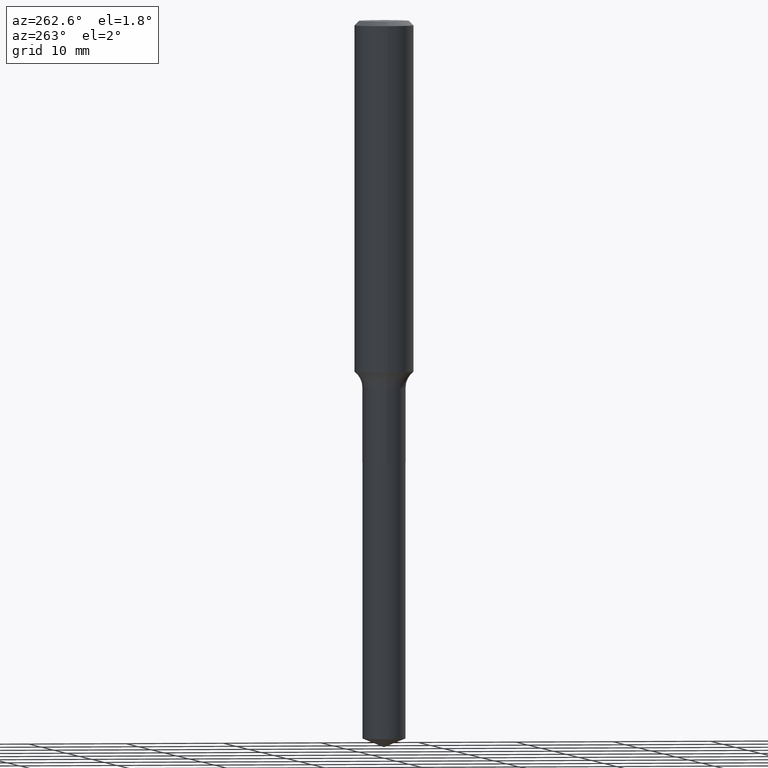
[diagram: clean part render]
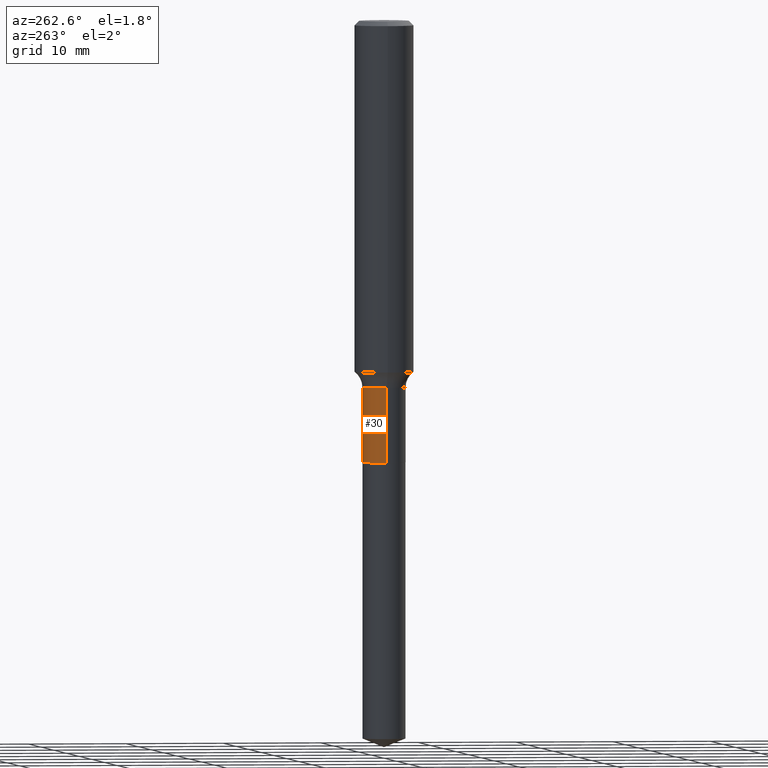
[diagram: same view with one face highlighted and labeled with its STEP entity id]
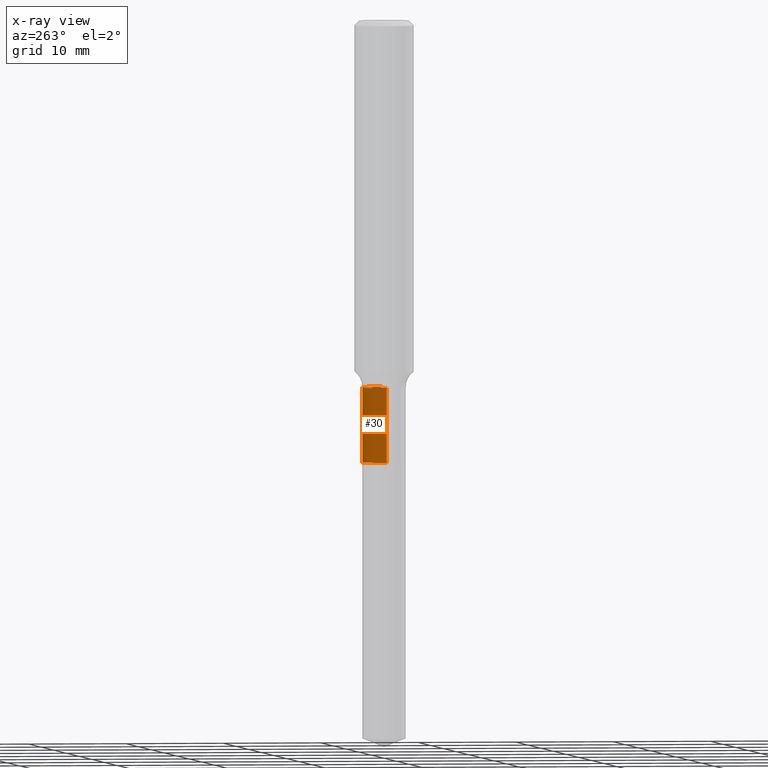
[diagram: x-ray of the same camera — body ghosted, the highlighted face saturated]
A machine part, auxiliary view. The second image highlights one B-rep face of the part: STEP entity #30.
The next image is the same camera in x-ray: the body ghosted, the highlighted face saturated — about 0% of this face is hidden behind the body in this view.
In plain terms, the highlighted cylindrical surface (edge-blend (fillet) strip) has radius 2.1996 mm, axis along (-0, 0, 1).
Its self-contained STEP definition (entity closure, byte-faithful):
#4 = CARTESIAN_POINT ( 'NONE',  ( 0.000000000000000000, 0.000000000000000000, 0.000000000000000000 ) ) ;
#19 = DIRECTION ( 'NONE',  ( -2.445468806185136597E-29, 3.491481338843145583E-15, 1.000000000000000000 ) ) ;
#30 = ADVANCED_FACE ( 'NONE', ( #374 ), #333, .T. ) ;
#40 = CARTESIAN_POINT ( 'NONE',  ( 0.08659999999999996867, -6.047245678876305299E-16, 4.222769087839279152E-30 ) ) ;
#53 = LINE ( 'NONE', #163, #73 ) ;
#72 = ORIENTED_EDGE ( 'NONE', *, *, #215, .T. ) ;
#73 = VECTOR ( 'NONE', #91, 39.37007874015748143 ) ;
#78 = EDGE_CURVE ( 'NONE', #240, #417, #361, .T. ) ;
#91 = DIRECTION ( 'NONE',  ( -2.445468806185136877E-29, 3.491481338843145188E-15, 1.000000000000000000 ) ) ;
#103 = CARTESIAN_POINT ( 'NONE',  ( 3.594839145092149699E-29, -5.132477568099422441E-15, -1.469999999999999529 ) ) ;
#108 = AXIS2_PLACEMENT_3D ( 'NONE', #103, #19, #281 ) ;
#120 = VERTEX_POINT ( 'NONE', #276 ) ;
#153 = DIRECTION ( 'NONE',  ( -2.445468806185136597E-29, 3.491481338843145583E-15, 1.000000000000000000 ) ) ;
#162 = CARTESIAN_POINT ( 'NONE',  ( 0.08659999999999998255, -6.787439722711072510E-15, -1.770799999999999930 ) ) ;
#163 = CARTESIAN_POINT ( 'NONE',  ( -0.08659999999999996867, 6.153300091682465383E-16, -4.259797788160746705E-30 ) ) ;
#169 = CIRCLE ( 'NONE', #219, 0.08659999999999998255 ) ;
#179 = ORIENTED_EDGE ( 'NONE', *, *, #232, .T. ) ;
#215 = EDGE_CURVE ( 'NONE', #120, #417, #53, .T. ) ;
#219 = AXIS2_PLACEMENT_3D ( 'NONE', #282, #452, #241 ) ;
#232 = EDGE_CURVE ( 'NONE', #418, #120, #169, .T. ) ;
#233 = CARTESIAN_POINT ( 'NONE',  ( 0.08659999999999995479, -5.737202135987053365E-15, -1.469999999999999529 ) ) ;
#240 = VERTEX_POINT ( 'NONE', #233 ) ;
#241 = DIRECTION ( 'NONE',  ( 1.000000000000000000, -6.982962677686269866E-15, 0.000000000000000000 ) ) ;
#257 = ORIENTED_EDGE ( 'NONE', *, *, #420, .F. ) ;
#276 = CARTESIAN_POINT ( 'NONE',  ( -0.08659999999999998255, -5.042266352293185968E-15, -1.770799999999999930 ) ) ;
#281 = DIRECTION ( 'NONE',  ( 1.000000000000000000, -6.982962677686272233E-15, 0.000000000000000000 ) ) ;
#282 = CARTESIAN_POINT ( 'NONE',  ( 4.330436161992639608E-29, -6.182715154823442375E-15, -1.770799999999999930 ) ) ;
#295 = DIRECTION ( 'NONE',  ( -2.445468806185136877E-29, 3.491481338843145188E-15, 1.000000000000000000 ) ) ;
#300 = LINE ( 'NONE', #40, #436 ) ;
#333 = CYLINDRICAL_SURFACE ( 'NONE', #346, 0.08659999999999996867 ) ;
#346 = AXIS2_PLACEMENT_3D ( 'NONE', #4, #153, #463 ) ;
#348 = CARTESIAN_POINT ( 'NONE',  ( -0.08659999999999995479, -5.042266352293185968E-15, -1.469999999999999529 ) ) ;
#361 = CIRCLE ( 'NONE', #108, 0.08659999999999995479 ) ;
#374 = FACE_OUTER_BOUND ( 'NONE', #469, .T. ) ;
#388 = ORIENTED_EDGE ( 'NONE', *, *, #78, .F. ) ;
#417 = VERTEX_POINT ( 'NONE', #348 ) ;
#418 = VERTEX_POINT ( 'NONE', #162 ) ;
#420 = EDGE_CURVE ( 'NONE', #418, #240, #300, .T. ) ;
#436 = VECTOR ( 'NONE', #295, 39.37007874015748143 ) ;
#452 = DIRECTION ( 'NONE',  ( -2.445468806185136597E-29, 3.491481338843145583E-15, 1.000000000000000000 ) ) ;
#463 = DIRECTION ( 'NONE',  ( 1.000000000000000000, -6.982962677686267499E-15, 4.876176775795936353E-29 ) ) ;
#469 = EDGE_LOOP ( 'NONE', ( #179, #72, #388, #257 ) ) ;